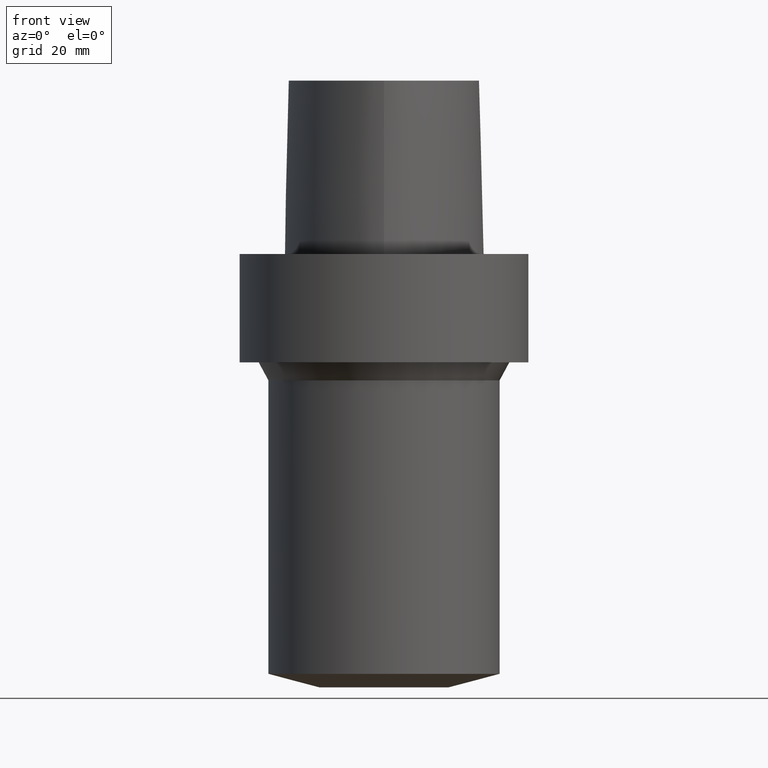
[diagram: clean part render]
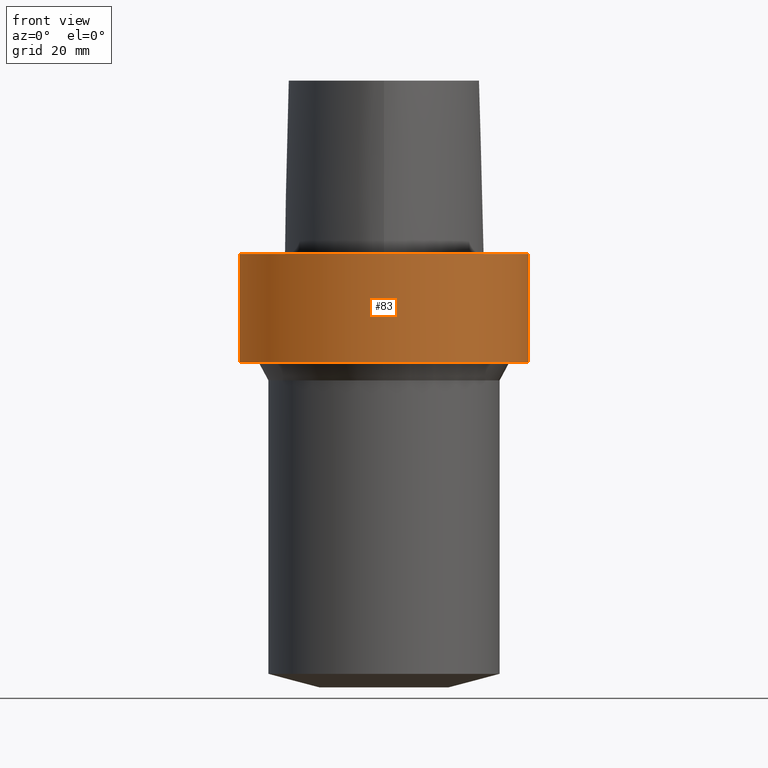
[diagram: same view with one face highlighted and labeled with its STEP entity id]
A machine part, front view. The second image highlights one B-rep face of the part: STEP entity #83.
In plain terms, the highlighted cylindrical surface (bore or boss wall) has radius 39.9925 mm, axis along (0, 0, -1).
Its self-contained STEP definition (entity closure, byte-faithful):
#83=ADVANCED_FACE('',(#106,#107),#108,.T.);
#106=FACE_BOUND('',#513,.T.);
#107=FACE_BOUND('',#514,.T.);
#108=CYLINDRICAL_SURFACE('',#515,39.9925);
#513=EDGE_LOOP('',(#553));
#514=EDGE_LOOP('',(#554));
#515=AXIS2_PLACEMENT_3D('',#555,#556,#557);
#553=ORIENTED_EDGE('',*,*,#561,.F.);
#554=ORIENTED_EDGE('',*,*,#566,.T.);
#555=CARTESIAN_POINT('',(9.18485099360515E-016,1.83697019872103E-015,-15.0));
#556=DIRECTION('',(6.12323399573677E-017,1.22464679914735E-016,-1.0));
#557=DIRECTION('',(-1.23259516440783E-032,1.0,1.22464679914735E-016));
#561=EDGE_CURVE('',#572,#572,#573,.T.);
#566=EDGE_CURVE('',#582,#582,#583,.T.);
#572=VERTEX_POINT('',#735);
#573=CIRCLE('',#736,39.9925);
#582=VERTEX_POINT('',#745);
#583=CIRCLE('',#746,39.9925);
#735=CARTESIAN_POINT('',(-4.92945621125802E-031,39.9925,4.89766871149005E-015));
#736=AXIS2_PLACEMENT_3D('',#747,#748,#749);
#745=CARTESIAN_POINT('',(1.83697019872103E-015,39.9925,-30.0));
#746=AXIS2_PLACEMENT_3D('',#762,#763,#764);
#747=CARTESIAN_POINT('',(0.0,0.0,0.0));
#748=DIRECTION('',(-6.12323399573677E-017,-1.22464679914735E-016,1.0));
#749=DIRECTION('',(-1.23259516440783E-032,1.0,1.22464679914735E-016));
#762=CARTESIAN_POINT('',(1.83697019872103E-015,3.67394039744206E-015,-30.0));
#763=DIRECTION('',(-6.12323399573677E-017,-1.22464679914735E-016,1.0));
#764=DIRECTION('',(-1.23259516440783E-032,1.0,1.22464679914735E-016));